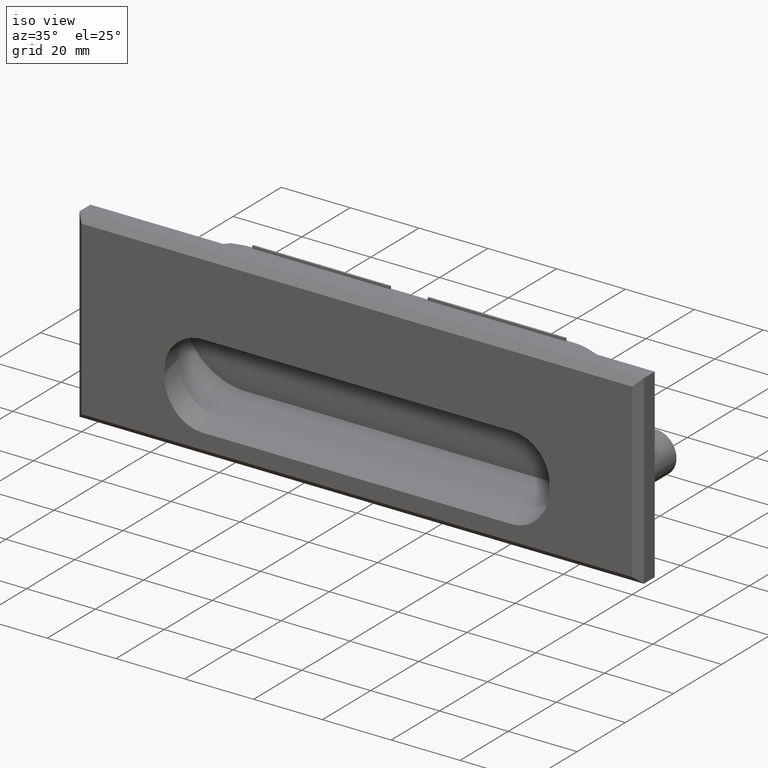
[diagram: clean part render]
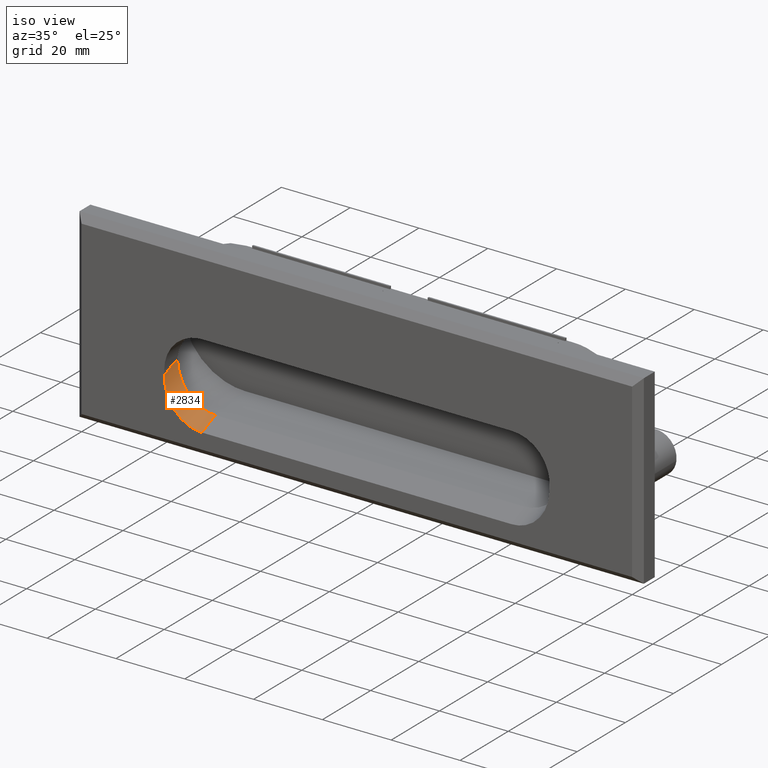
[diagram: same view with one face highlighted and labeled with its STEP entity id]
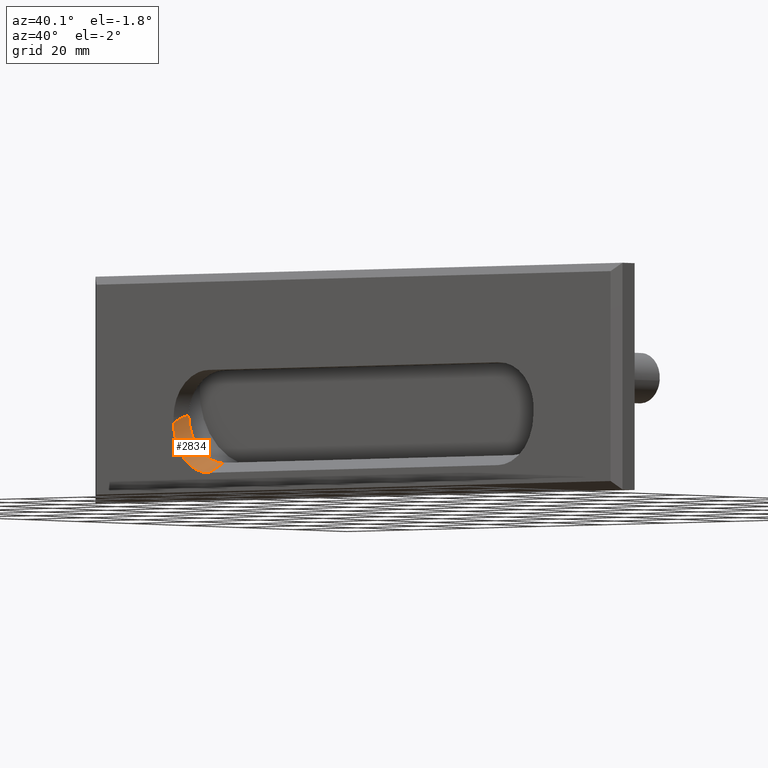
[diagram: same view with one face highlighted and labeled with its STEP entity id]
A machine part, iso view. The second image highlights one B-rep face of the part: STEP entity #2834.
A second angle (auxiliary view) of the same face is appended — the face is thin or edge-on in the first view.
In plain terms, the highlighted face is a freeform B-spline surface patch.
Its self-contained STEP definition (entity closure, byte-faithful):
#2759=CARTESIAN_POINT('',(-44.904008109517903,10.084045733250459,-15.915882763156359));
#2760=CARTESIAN_POINT('',(-44.904008109517903,-0.252278796156721,-20.614212094705088));
#2761=CARTESIAN_POINT('',(-56.699614762129272,10.126642070297457,-16.009594704659758));
#2762=CARTESIAN_POINT('',(-56.699614762129272,-0.209682459109724,-20.707924036208485));
#2763=CARTESIAN_POINT('',(-55.979482782640531,5.254503946314225,-5.290890831896661));
#2764=CARTESIAN_POINT('',(-55.979482782640531,-5.081820583092956,-9.989220163445395));
#2772=(BOUNDED_SURFACE()B_SPLINE_SURFACE(1,2,((#2759,#2761,#2763),(#2760,#2762,#2764)),.UNSPECIFIED.,.F.,.F.,.U.)B_SPLINE_SURFACE_WITH_KNOTS((2,2),(3,3),(0.0,11.354025862438210),(0.0,19.131744498281058),.UNSPECIFIED.)GEOMETRIC_REPRESENTATION_ITEM()RATIONAL_B_SPLINE_SURFACE(((1.0,0.681998360062499,1.0),(1.0,0.681998360062499,1.0)))REPRESENTATION_ITEM('')SURFACE());
#2773=CARTESIAN_POINT('',(-56.0,3.117298858091940,-7.0));
#2774=VERTEX_POINT('',#2773);
#2775=CARTESIAN_POINT('',(-55.987885389462200,5.500000000000000,-6.483885024395460));
#2776=VERTEX_POINT('',#2775);
#2777=CARTESIAN_POINT('',(-55.999999999999993,3.117298858091937,-7.000000000000001));
#2778=CARTESIAN_POINT('',(-55.999999999999986,4.309305824507075,-6.741800330905481));
#2779=CARTESIAN_POINT('',(-55.987885389462200,5.500000000000000,-6.483885024395460));
#2787=(BOUNDED_CURVE()B_SPLINE_CURVE(2,(#2777,#2778,#2779),.UNSPECIFIED.,.F.,.U.)CURVE()GEOMETRIC_REPRESENTATION_ITEM()QUASI_UNIFORM_CURVE()RATIONAL_B_SPLINE_CURVE((1.0,0.999724630029024,1.0))REPRESENTATION_ITEM(''));
#2788=EDGE_CURVE('',#2774,#2776,#2787,.T.);
#2789=ORIENTED_EDGE('',*,*,#2788,.F.);
#2790=CARTESIAN_POINT('',(-56.0,0.0,-8.416954026405431));
#2791=VERTEX_POINT('',#2790);
#2792=CARTESIAN_POINT('',(-56.0,0.0,-8.416954026405431));
#2793=CARTESIAN_POINT('',(-56.0,3.117298858091940,-7.0));
#2794=QUASI_UNIFORM_CURVE('',1,(#2792,#2793),.UNSPECIFIED.,.F.,.U.);
#2795=EDGE_CURVE('',#2791,#2774,#2794,.T.);
#2796=ORIENTED_EDGE('',*,*,#2795,.F.);
#2797=CARTESIAN_POINT('',(-45.0,0.0,-20.500000000000000));
#2798=VERTEX_POINT('',#2797);
#2799=CARTESIAN_POINT('',(-45.0,-1.084202E-016,-20.499999999999989));
#2800=CARTESIAN_POINT('',(-56.0,-1.084202E-016,-20.499999999999989));
#2801=CARTESIAN_POINT('',(-55.999999999999993,-1.084202E-016,-8.416954026405431));
#2809=(BOUNDED_CURVE()B_SPLINE_CURVE(2,(#2799,#2800,#2801),.UNSPECIFIED.,.F.,.U.)CURVE()GEOMETRIC_REPRESENTATION_ITEM()QUASI_UNIFORM_CURVE()RATIONAL_B_SPLINE_CURVE((1.0,0.707106781186548,1.0))REPRESENTATION_ITEM(''));
#2810=EDGE_CURVE('',#2798,#2791,#2809,.T.);
#2811=ORIENTED_EDGE('',*,*,#2810,.F.);
#2812=CARTESIAN_POINT('',(-45.0,5.500000000000000,-18.0));
#2813=VERTEX_POINT('',#2812);
#2814=CARTESIAN_POINT('',(-45.0,5.500000000000000,-18.0));
#2815=CARTESIAN_POINT('',(-45.0,0.0,-20.500000000000000));
#2816=QUASI_UNIFORM_CURVE('',1,(#2814,#2815),.UNSPECIFIED.,.F.,.U.);
#2817=EDGE_CURVE('',#2813,#2798,#2816,.T.);
#2818=ORIENTED_EDGE('',*,*,#2817,.F.);
#2819=CARTESIAN_POINT('',(-55.987885389462193,5.500000000000000,-6.483885024395459));
#2820=CARTESIAN_POINT('',(-55.495443953114858,5.500000000000000,-17.999999999999993));
#2821=CARTESIAN_POINT('',(-45.0,5.500000000000000,-17.999999999999989));
#2829=(BOUNDED_CURVE()B_SPLINE_CURVE(2,(#2819,#2820,#2821),.UNSPECIFIED.,.F.,.U.)CURVE()GEOMETRIC_REPRESENTATION_ITEM()QUASI_UNIFORM_CURVE()RATIONAL_B_SPLINE_CURVE((1.0,0.723505198058996,1.0))REPRESENTATION_ITEM(''));
#2830=EDGE_CURVE('',#2776,#2813,#2829,.T.);
#2831=ORIENTED_EDGE('',*,*,#2830,.F.);
#2832=EDGE_LOOP('',(#2789,#2796,#2811,#2818,#2831));
#2833=FACE_OUTER_BOUND('',#2832,.T.);
#2834=ADVANCED_FACE('',(#2833),#2772,.F.);